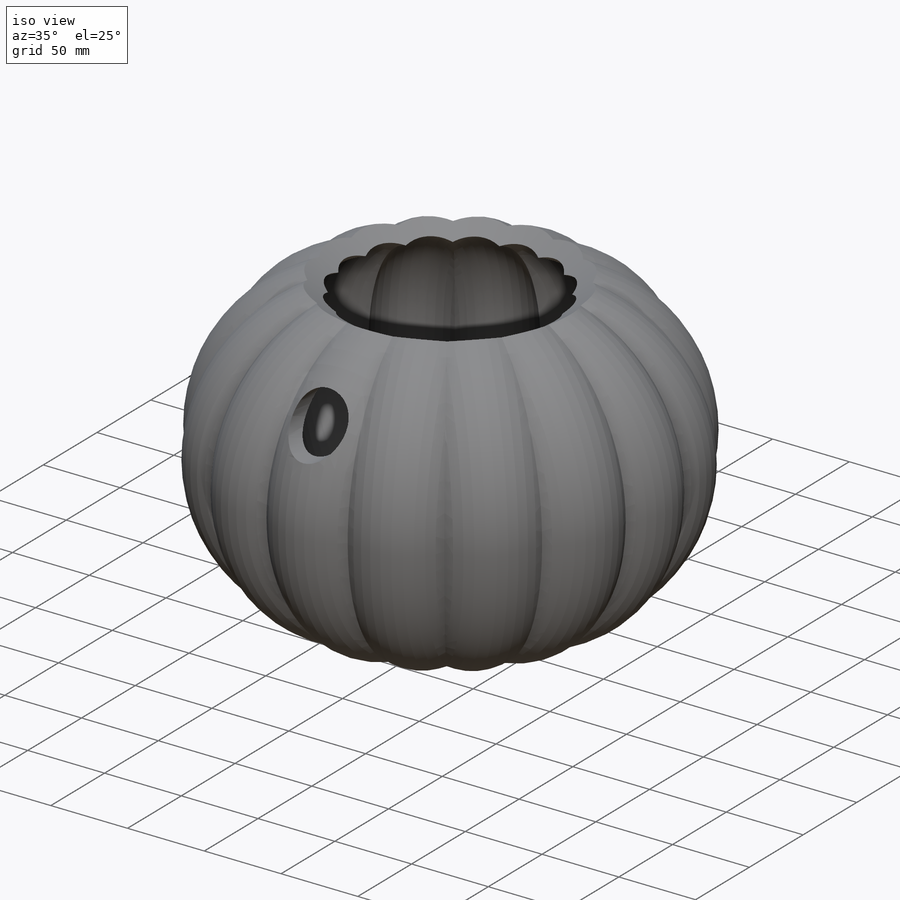
[diagram: iso view]
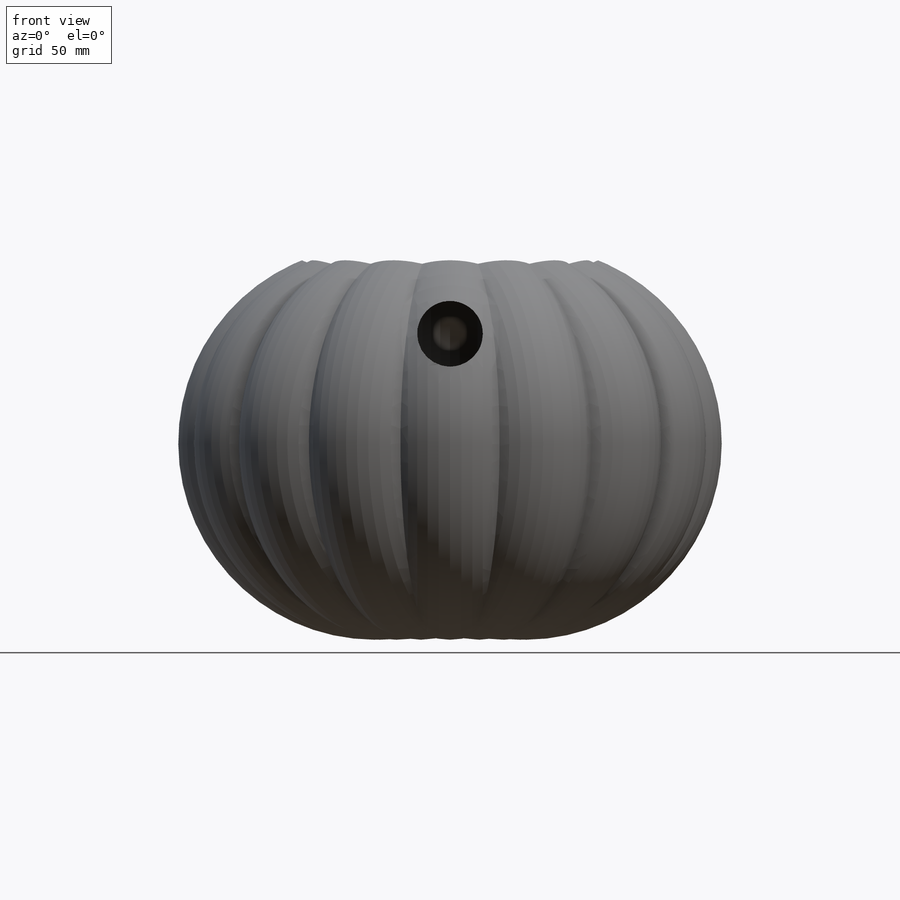
[diagram: front view]
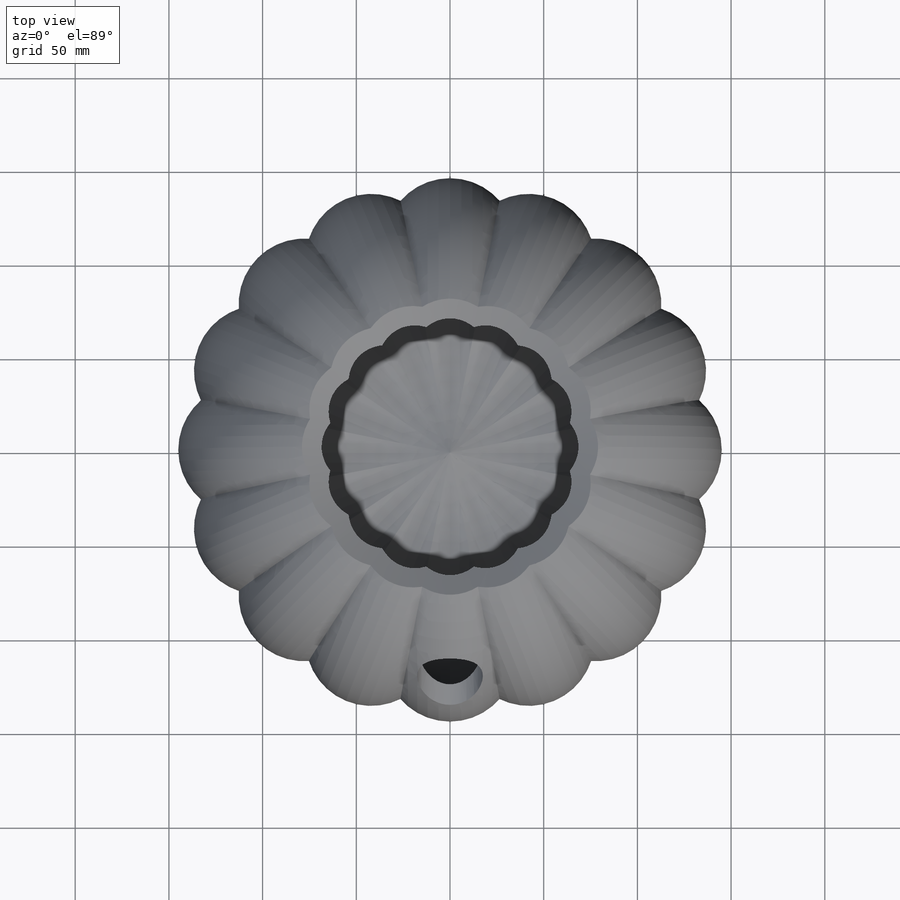
[diagram: top view]
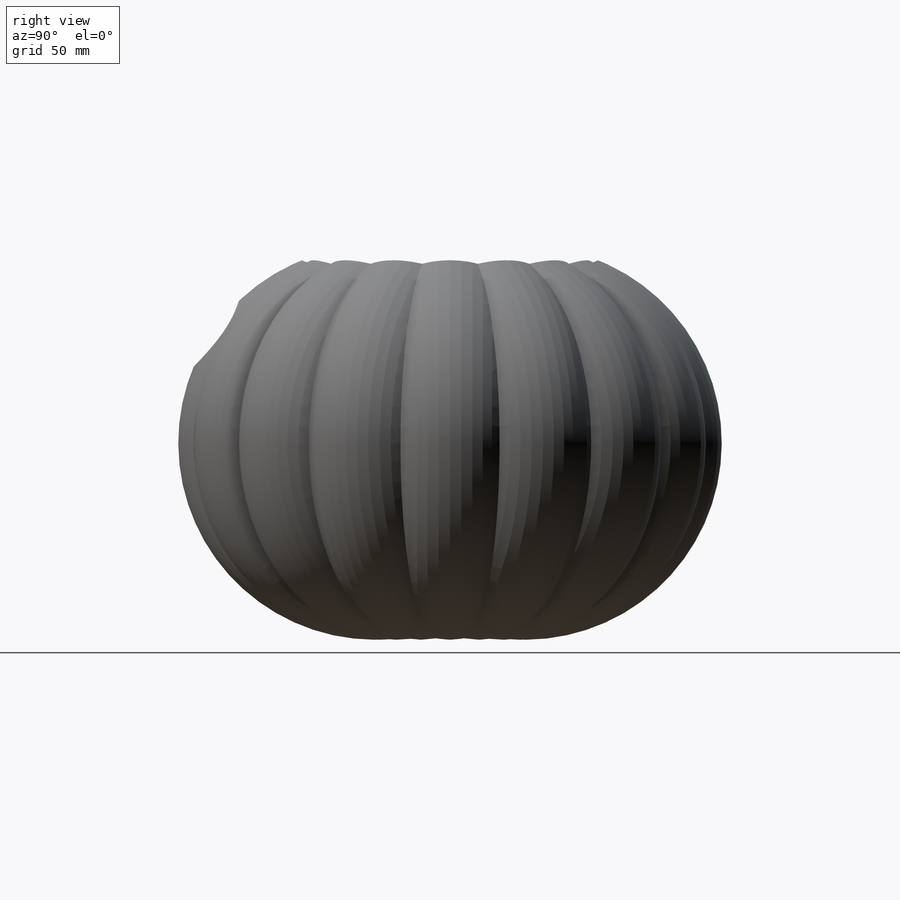
[diagram: right view]
SOLIDWORKS PART (.sldprt)
format: sldprt  version: not decoded by parser v0  size: 754,176 bytes
history: native  units: mm
features: sketch x4, material x1, revolve x1, pattern_circular x1, shell x1, cut_revolve x1, cut_extrude x1 (+11 scaffold rows collapsed)
feature tree (21):
  scaffold x11  (default folders/planes/origin — collapsed)
  material  "Material <not specified>"
  sketch  "Sketch2"  dims[c1.D1=100.0mm c1.D2=25.0mm c1.D3=50.0mm c2.D1=25.0mm c2.D2=40.0mm c2.D4=70.0mm]
  revolve  "Revolve5"  Angle=360deg
  sketch  "Sketch3"
  pattern_circular  "CirPattern3"  Count=16 Angle=360deg
  shell  "Shell7"  Thickness=10mm
  sketch  "Sketch10"
  cut_revolve  "Cut-Revolve12"  Angle=360deg
  sketch  "Sketch11"  dims[D1=~16.665547mm]
  cut_extrude  "Cut-Extrude2"  [1 undecoded]
decode coverage: 6 of 9 modeling features carry decoded parameters
note: ~ marks probable driven/reference dimensions
note: 1 parameter value undecoded
note: suppression state not decoded; provenance and decode notes live in map.json
